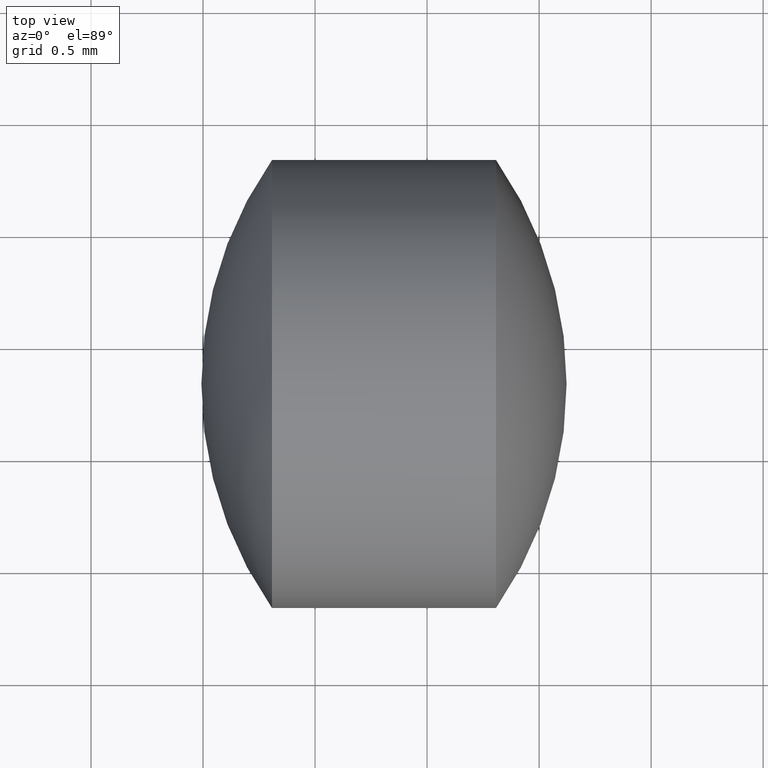
[diagram: clean part render]
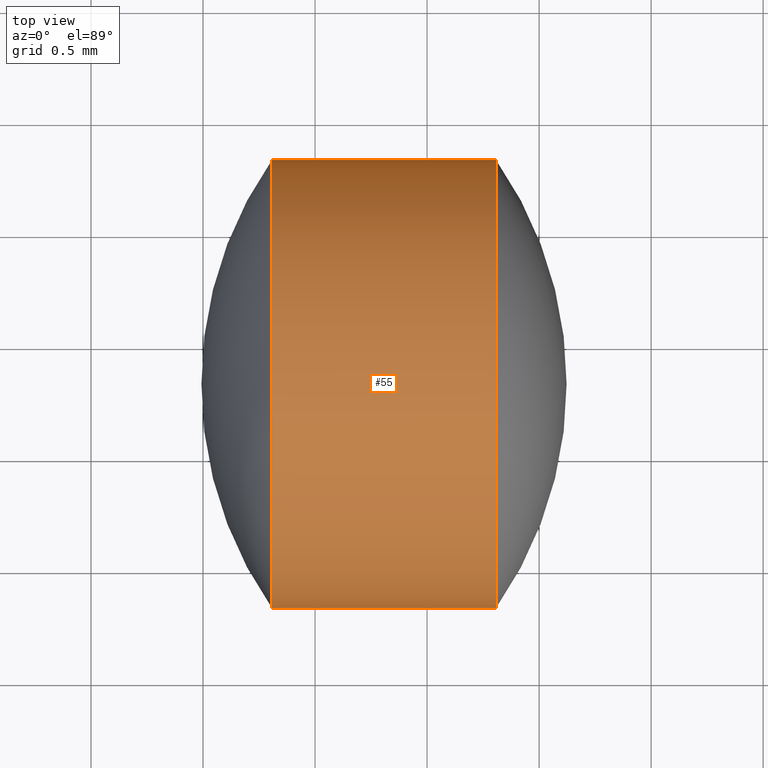
[diagram: same view with one face highlighted and labeled with its STEP entity id]
A machine part, top view. The second image highlights one B-rep face of the part: STEP entity #55.
In plain terms, the highlighted cylindrical surface (partial cylindrical patch) has radius 1 mm, axis along (-1, -0, -0).
Its self-contained STEP definition (entity closure, byte-faithful):
#17 = DIRECTION ( 'NONE',  ( -1.000000000000000000, -1.026130654988835600E-014, -0.0000000000000000000 ) ) ;
#21 = DIRECTION ( 'NONE',  ( 1.040834085585986300E-014, -1.000000000000000000, 0.0000000000000000000 ) ) ;
#24 = LINE ( 'NONE', #272, #270 ) ;
#25 = VERTEX_POINT ( 'NONE', #116 ) ;
#52 = FACE_OUTER_BOUND ( 'NONE', #113, .T. ) ;
#55 = ADVANCED_FACE ( 'NONE', ( #52 ), #172, .T. ) ;
#64 = DIRECTION ( 'NONE',  ( 1.040834085585980900E-014, -1.000000000000000000, 0.0000000000000000000 ) ) ;
#69 = EDGE_CURVE ( 'NONE', #294, #268, #111, .T. ) ;
#85 = CARTESIAN_POINT ( 'NONE',  ( 5.877930205979836000, 4.828040395526855400, 1.224646799147468600E-016 ) ) ;
#92 = LINE ( 'NONE', #85, #126 ) ;
#108 = CARTESIAN_POINT ( 'NONE',  ( 7.307731793281226900, 4.828040395526865100, 1.224646799147462700E-016 ) ) ;
#111 = CIRCLE ( 'NONE', #292, 1.000000000000088800 ) ;
#113 = EDGE_LOOP ( 'NONE', ( #139, #302, #295, #161 ) ) ;
#116 = CARTESIAN_POINT ( 'NONE',  ( 6.307731793281226900, 4.828040395526875800, 0.0000000000000000000 ) ) ;
#126 = VECTOR ( 'NONE', #220, 1000.000000000000000 ) ;
#139 = ORIENTED_EDGE ( 'NONE', *, *, #69, .T. ) ;
#155 = DIRECTION ( 'NONE',  ( -1.000000000000000000, -1.026130654988835600E-014, -0.0000000000000000000 ) ) ;
#161 = ORIENTED_EDGE ( 'NONE', *, *, #217, .F. ) ;
#172 = CYLINDRICAL_SURFACE ( 'NONE', #281, 1.000000000000094100 ) ;
#179 = DIRECTION ( 'NONE',  ( -1.000000000000000000, -1.026130654988835600E-014, -0.0000000000000000000 ) ) ;
#180 = CARTESIAN_POINT ( 'NONE',  ( 5.877930205979845700, 3.828040395526761700, 0.0000000000000000000 ) ) ;
#192 = EDGE_CURVE ( 'NONE', #247, #25, #235, .T. ) ;
#194 = CARTESIAN_POINT ( 'NONE',  ( 7.307731793281247300, 2.828040395526687500, 0.0000000000000000000 ) ) ;
#205 = CARTESIAN_POINT ( 'NONE',  ( 6.307731793281237600, 3.828040395526765700, 0.0000000000000000000 ) ) ;
#217 = EDGE_CURVE ( 'NONE', #294, #247, #24, .T. ) ;
#220 = DIRECTION ( 'NONE',  ( -1.000000000000000000, -1.026130654988835600E-014, -0.0000000000000000000 ) ) ;
#226 = DIRECTION ( 'NONE',  ( 1.040834085585991800E-014, -1.000000000000000000, 0.0000000000000000000 ) ) ;
#229 = CARTESIAN_POINT ( 'NONE',  ( 7.307731793281237600, 3.828040395526776300, 0.0000000000000000000 ) ) ;
#235 = CIRCLE ( 'NONE', #283, 1.000000000000099300 ) ;
#247 = VERTEX_POINT ( 'NONE', #297 ) ;
#260 = DIRECTION ( 'NONE',  ( -1.000000000000000000, -1.026130654988835600E-014, -0.0000000000000000000 ) ) ;
#268 = VERTEX_POINT ( 'NONE', #108 ) ;
#270 = VECTOR ( 'NONE', #155, 1000.000000000000000 ) ;
#272 = CARTESIAN_POINT ( 'NONE',  ( 5.877930205979856400, 2.828040395526667500, 0.0000000000000000000 ) ) ;
#281 = AXIS2_PLACEMENT_3D ( 'NONE', #180, #17, #21 ) ;
#283 = AXIS2_PLACEMENT_3D ( 'NONE', #205, #260, #64 ) ;
#292 = AXIS2_PLACEMENT_3D ( 'NONE', #229, #179, #226 ) ;
#294 = VERTEX_POINT ( 'NONE', #194 ) ;
#295 = ORIENTED_EDGE ( 'NONE', *, *, #192, .F. ) ;
#297 = CARTESIAN_POINT ( 'NONE',  ( 6.307731793281247300, 2.828040395526656400, -1.224646799147487300E-016 ) ) ;
#302 = ORIENTED_EDGE ( 'NONE', *, *, #303, .T. ) ;
#303 = EDGE_CURVE ( 'NONE', #268, #25, #92, .T. ) ;